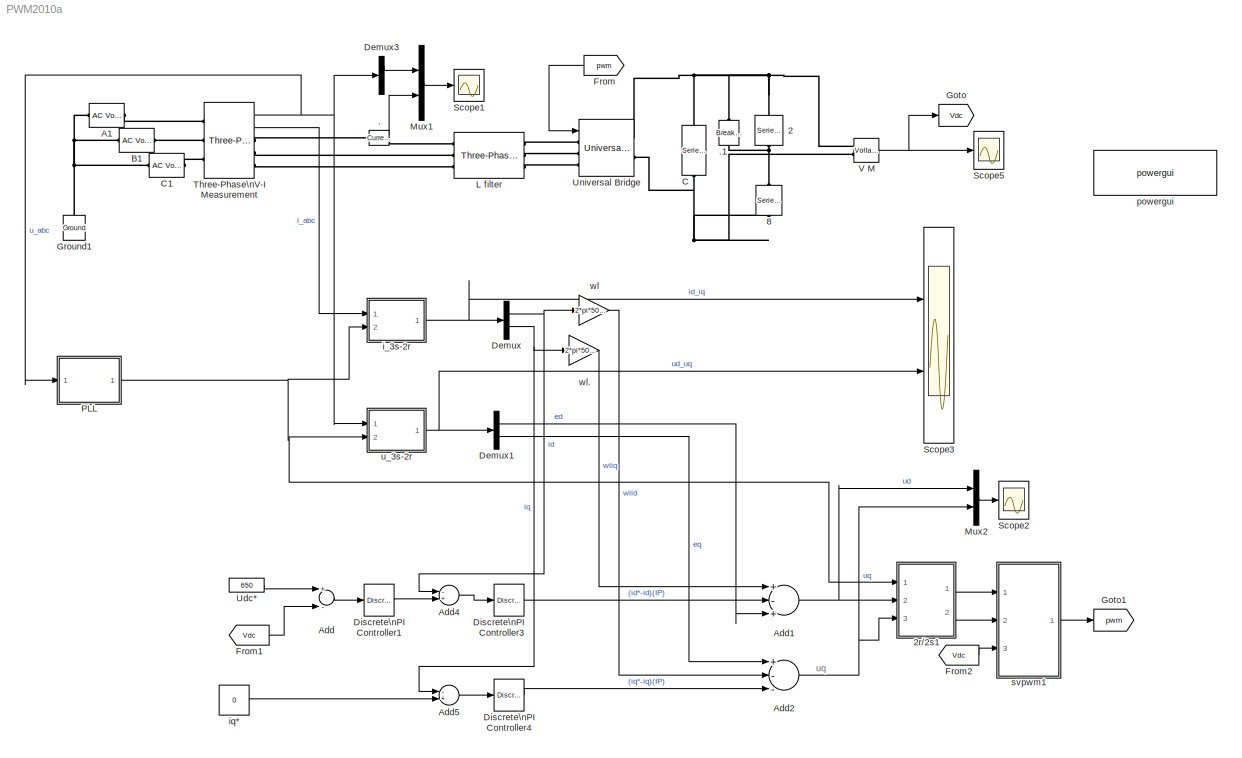
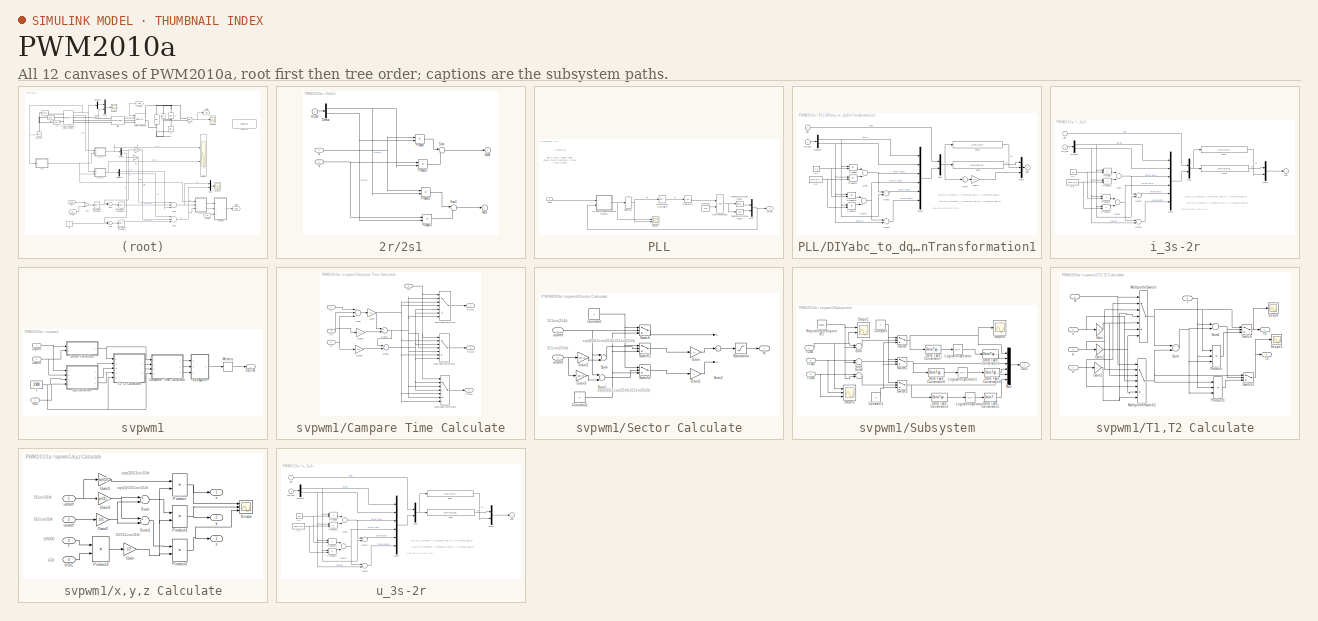
[diagram: thumbnail index - all 12 canvases of the model, root first then tree order]
MODEL PWM2010a
KIND model
BLOCK [Reference] .  REF=powerlib/Measurements/Current Measurement
  OutputType = Complex
  PSBequivalent = 0
  PhasorSimulation = off
  Ports = [0, 1, 0, 0, 0, 1, 1]
  SID = 1
  SourceBlock = powerlib/Measurements/Current Measurement
  SourceType = Current Measurement
BLOCK [Reference] .1  REF=powerlib/Elements/Breaker
  AttributesFormatString = \\n
  BreakerResistance = 0.001
  External = off
  InitialState = 0
  Measurements = None
  MoreParameters = off
  NoBreakLoop = off
  Ports = [0, 0, 0, 0, 0, 1, 1]
  SID = 3
  SnubberCapacitance = inf
  SnubberResistance = 1e6
  SourceBlock = powerlib/Elements/Breaker
  SourceType = Breaker
  SwitchingTimes = [0.8]
BLOCK [Reference] 2  REF=powerlib/Elements/Series RLC Branch
  BranchType = R
  Capacitance = 1e-3
  Inductance = 1e-3
  InitialCurrent = 0
  InitialVoltage = 0
  LConnTagsString = __new0
  Measurements = None
  Ports = [0, 0, 0, 0, 0, 1, 1]
  RConnTagsString = __new0
  Resistance = 2
  SID = 6
  SetiL0 = off
  Setx0 = off
  SourceBlock = powerlib/Elements/Series RLC Branch
  SourceType = Series RLC Branch
BLOCK [SubSystem] 2r//2s1
  FunctionWithSeparateData = off
  MaskHideContents = off
  MinAlgLoopOccurrences = off
  Opaque = off
  Ports = [3, 2]
  PropExecContextOutsideSubsystem = off
  RTWSystemCode = Auto
  RequestExecContextInheritance = off
  SID = 7
BLOCK [Demux] 2r//2s1/Demux
  DisplayOption = bar
  Outputs = 2
  Ports = [1, 2]
  SID = 11
BLOCK [Product] 2r//2s1/Product
  InputSameDT = off
  OutDataTypeMode = Inherit via internal rule
  OutDataTypeStr = Inherit: Inherit via internal rule
  Ports = [2, 1]
  SID = 12
  SaturateOnIntegerOverflow = off
BLOCK [Product] 2r//2s1/Product1
  InputSameDT = off
  OutDataTypeMode = Inherit via internal rule
  OutDataTypeStr = Inherit: Inherit via internal rule
  Ports = [2, 1]
  SID = 13
  SaturateOnIntegerOverflow = off
BLOCK [Product] 2r//2s1/Product2
  InputSameDT = off
  OutDataTypeMode = Inherit via internal rule
  OutDataTypeStr = Inherit: Inherit via internal rule
  Ports = [2, 1]
  SID = 14
  SaturateOnIntegerOverflow = off
BLOCK [Product] 2r//2s1/Product3
  InputSameDT = off
  OutDataTypeMode = Inherit via internal rule
  OutDataTypeStr = Inherit: Inherit via internal rule
  Ports = [2, 1]
  SID = 15
  SaturateOnIntegerOverflow = off
BLOCK [Sum] 2r//2s1/Sum
  IconShape = round
  InputSameDT = off
  Inputs = |+-
  OutDataTypeMode = Inherit via internal rule
  OutDataTypeStr = Inherit: Inherit via internal rule
  Ports = [2, 1]
  SID = 16
  SaturateOnIntegerOverflow = off
BLOCK [Sum] 2r//2s1/Sum1
  IconShape = round
  InputSameDT = off
  Inputs = |++
  OutDataTypeMode = Inherit via internal rule
  OutDataTypeStr = Inherit: Inherit via internal rule
  Ports = [2, 1]
  SID = 17
  SaturateOnIntegerOverflow = off
BLOCK [Outport] 2r//2s1/alpha
  IconDisplay = Port number
  InitialOutput = 0
  Port = 2
  SID = 19
BLOCK [Outport] 2r//2s1/beta
  IconDisplay = Port number
  InitialOutput = 0
  SID = 18
BLOCK [Inport] 2r//2s1/d
  IconDisplay = Port number
  Port = 2
  SID = 9
BLOCK [Inport] 2r//2s1/q
  IconDisplay = Port number
  Port = 3
  SID = 10
BLOCK [Inport] 2r//2s1/sin_cos
  IconDisplay = Port number
  PortDimensions = 2
  SID = 8
BLOCK [Reference] 8  REF=powerlib/Elements/Series RLC Branch
  BranchType = R
  Capacitance = 1e-3
  Inductance = 1e-3
  InitialCurrent = 0
  InitialVoltage = 0
  LConnTagsString = __new0
  Measurements = None
  Ports = [0, 0, 0, 0, 0, 1, 1]
  RConnTagsString = __new0
  Resistance = 8
  SID = 20
  SetiL0 = off
  Setx0 = off
  SourceBlock = powerlib/Elements/Series RLC Branch
  SourceType = Series RLC Branch
BLOCK [Reference] A1  REF=powerlib/Electrical\nSources/AC Voltage Source
  Amplitude = 311
  BusType = swing
  Frequency = 50
  Measurements = None
  Phase = 90
  Ports = [0, 0, 0, 0, 0, 1, 1]
  Pref = 10e3
  Qmax = +inf
  Qmin = -inf
  Qref = 0
  SID = 21
  SampleTime = 0
  SourceBlock = powerlib/Electrical\nSources/AC Voltage Source
  SourceType = AC Voltage Source
BLOCK [Sum] Add
  InputSameDT = off
  Inputs = +-
  OutDataTypeMode = Inherit via internal rule
  OutDataTypeStr = Inherit: Inherit via internal rule
  Ports = [2, 1]
  SID = 22
  SaturateOnIntegerOverflow = off
BLOCK [Sum] Add1
  InputSameDT = off
  Inputs = +-+
  OutDataTypeMode = Inherit via internal rule
  OutDataTypeStr = Inherit: Inherit via internal rule
  Ports = [3, 1]
  SID = 23
  SaturateOnIntegerOverflow = off
BLOCK [Sum] Add2
  InputSameDT = off
  Inputs = +--
  OutDataTypeMode = Inherit via internal rule
  OutDataTypeStr = Inherit: Inherit via internal rule
  Ports = [3, 1]
  SID = 24
  SaturateOnIntegerOverflow = off
BLOCK [Sum] Add4
  InputSameDT = off
  Inputs = -+
  OutDataTypeMode = Inherit via internal rule
  OutDataTypeStr = Inherit: Inherit via internal rule
  Ports = [2, 1]
  SID = 26
  SaturateOnIntegerOverflow = off
BLOCK [Sum] Add5
  InputSameDT = off
  Inputs = -+
  OutDataTypeMode = Inherit via internal rule
  OutDataTypeStr = Inherit: Inherit via internal rule
  Ports = [2, 1]
  SID = 27
  SaturateOnIntegerOverflow = off
BLOCK [Reference] B1  REF=powerlib/Electrical\nSources/AC Voltage Source
  Amplitude = 311
  BusType = swing
  Frequency = 50
  Measurements = None
  Phase = -120+90
  Ports = [0, 0, 0, 0, 0, 1, 1]
  Pref = 10e3
  Qmax = +inf
  Qmin = -inf
  Qref = 0
  SID = 28
  SampleTime = 0
  SourceBlock = powerlib/Electrical\nSources/AC Voltage Source
  SourceType = AC Voltage Source
BLOCK [Reference] C   REF=powerlib/Elements/Series RLC Branch
  BranchType = C
  Capacitance = 0.008
  Inductance = 1e-3
  InitialCurrent = 0
  InitialVoltage = 600
  LConnTagsString = __new0
  Measurements = None
  Ports = [0, 0, 0, 0, 0, 1, 1]
  RConnTagsString = __new0
  Resistance = 1
  SID = 29
  SetiL0 = off
  Setx0 = off
  SourceBlock = powerlib/Elements/Series RLC Branch
  SourceType = Series RLC Branch
BLOCK [Reference] C1  REF=powerlib/Electrical\nSources/AC Voltage Source
  Amplitude = 311
  BusType = swing
  Frequency = 50
  Measurements = None
  Phase = -240+90
  Ports = [0, 0, 0, 0, 0, 1, 1]
  Pref = 10e3
  Qmax = +inf
  Qmin = -inf
  Qref = 0
  SID = 30
  SampleTime = 0
  SourceBlock = powerlib/Electrical\nSources/AC Voltage Source
  SourceType = AC Voltage Source
BLOCK [Demux] Demux
  DisplayOption = bar
  Outputs = 2
  Ports = [1, 2]
  SID = 32
BLOCK [Demux] Demux1
  DisplayOption = bar
  Outputs = 2
  Ports = [1, 2]
  SID = 33
BLOCK [Demux] Demux3
  DisplayOption = bar
  Outputs = 3
  Ports = [1, 3]
  SID = 34
BLOCK [Reference] Discrete\nPI Controller1  REF=powerlib_extras/Discrete \nControl Blocks/Discrete\nPI Controller
  Init = 0
  Ki = 13
  Kp = 0.5
  Par_Limits = [10000 -10000]
  Ports = [1, 1]
  SID = 35
  SourceBlock = powerlib_extras/Discrete \nControl Blocks/Discrete\nPI Controller
  SourceType = Discrete PI Controller
  Ts = 50e-6
BLOCK [Reference] Discrete\nPI Controller3  REF=powerlib_extras/Discrete \nControl Blocks/Discrete\nPI Controller
  Init = 0
  Ki = 120
  Kp = 20
  Par_Limits = [1e6 -1e6]
  Ports = [1, 1]
  SID = 36
  SourceBlock = powerlib_extras/Discrete \nControl Blocks/Discrete\nPI Controller
  SourceType = Discrete PI Controller
  Ts = 50e-6
BLOCK [Reference] Discrete\nPI Controller4  REF=powerlib_extras/Discrete \nControl Blocks/Discrete\nPI Controller
  Init = 0
  Ki = 100
  Kp = 20
  Par_Limits = [1e6 -1e6]
  Ports = [1, 1]
  SID = 37
  SourceBlock = powerlib_extras/Discrete \nControl Blocks/Discrete\nPI Controller
  SourceType = Discrete PI Controller
  Ts = 50e-6
BLOCK [From] From
  GotoTag = pwm
  SID = 203
  TagVisibility = global
BLOCK [From] From1
  GotoTag = Vdc
  SID = 204
  TagVisibility = global
BLOCK [From] From2
  GotoTag = Vdc
  SID = 205
  TagVisibility = global
BLOCK [Goto] Goto
  GotoTag = Vdc
  SID = 201
  TagVisibility = global
BLOCK [Goto] Goto1
  GotoTag = pwm
  SID = 202
  TagVisibility = global
BLOCK [Reference] Ground1  REF=powerlib/Elements/Ground
  LConnTagsString = a
  Ports = [0, 0, 0, 0, 0, 1]
  SID = 40
  SourceBlock = powerlib/Elements/Ground
  SourceType = Ground
BLOCK [Reference] L filter  REF=powerlib/Elements/Three-Phase\nSeries RLC Branch
  AttributesFormatString = \\n
  BranchType = RL
  Capacitance = 1e-6
  Inductance = 0.002
  LConnTagsString = A|B|C
  Measurements = None
  Ports = [0, 0, 0, 0, 0, 3, 3]
  RConnTagsString = A|B|C
  Resistance = 0.5
  SID = 64
  SourceBlock = powerlib/Elements/Three-Phase\nSeries RLC Branch
  SourceType = Three-Phase Series RLC Branch
BLOCK [Mux] Mux1
  DisplayOption = bar
  Inputs = 2
  Ports = [2, 1]
  SID = 42
BLOCK [Mux] Mux2
  DisplayOption = bar
  Inputs = 2
  Ports = [2, 1]
  SID = 43
BLOCK [SubSystem] PLL
  FunctionWithSeparateData = off
  MaskHideContents = off
  MinAlgLoopOccurrences = off
  Opaque = off
  Ports = [1, 1]
  PropExecContextOutsideSubsystem = off
  RTWSystemCode = Auto
  RequestExecContextInheritance = off
  SID = 45
BLOCK [Constant] PLL/Constant3
  SID = 47
  Value = 2*pi
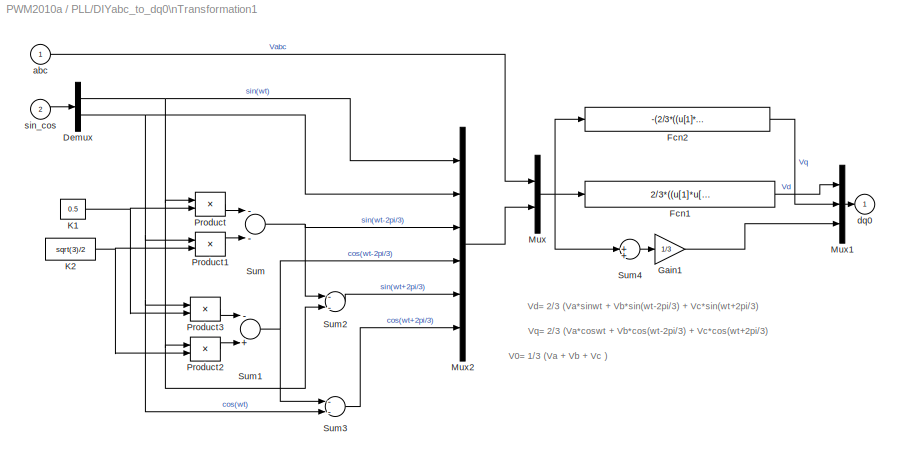
BLOCK [SubSystem] PLL/DIYabc_to_dq0\nTransformation1
  AncestorBlock = powerlib_extras/Measurements/abc_to_dq0\nTransformation
  FunctionWithSeparateData = off
  MaskDescription = This block performs the  abc to dq0 transformation on a set of three-phase signals. It computes the direct axis Vd, quadratic axis Vq, and zero sequence V0 quantities in a two axis rotating reference frame according to the following transformation:\n\n\nVd = 2/3*[Va*cos(wt) + Vb*cos(wt-2pi/3) + Vc*cos(wt+2pi/3)]\nVq = 2/3*[-Va*sin(wt) - Vb*sin(wt-2pi/3) - Vc*sin(wt+2pi/3)] \nV0 = 1/3*[Va +  Vb  + ...<+189ch>  <repeated x3 — deduplicated; at blocks: DIYabc_to_dq0\nTransformation1, i_3s-2r, u_3s-2r>
  MaskHelp = web(psbhelp);
  MaskHideContents = off
  MaskIconFrame = on
  MaskIconOpaque = on
  MaskIconRotate = none
  MaskIconUnits = autoscale
  MaskPortRotate = default
  MaskType = abc to dq0 Transformation
  MinAlgLoopOccurrences = off
  Opaque = off
  Ports = [2, 1]
  PropExecContextOutsideSubsystem = off
  RTWSystemCode = Auto
  RequestExecContextInheritance = off
  SID = 48
BLOCK [Demux] PLL/DIYabc_to_dq0\nTransformation1/Demux
  DisplayOption = bar
  Outputs = 2
  Ports = [1, 2]
  SID = 3
BLOCK [Fcn] PLL/DIYabc_to_dq0\nTransformation1/Fcn1
  Expr = 2/3*((u[1]*u[5])+(u[2]*u[7])+(u[3]*u[9]))
  SID = 4
BLOCK [Fcn] PLL/DIYabc_to_dq0\nTransformation1/Fcn2
  Expr = -(2/3*((u[1]*u[4])+(u[2]*u[6])+(u[3]*u[8])))
  SID = 5
BLOCK [Gain] PLL/DIYabc_to_dq0\nTransformation1/Gain1
  Gain = 1/3
  SID = 6
BLOCK [Constant] PLL/DIYabc_to_dq0\nTransformation1/K1
  SID = 7
  Value = 0.5
BLOCK [Constant] PLL/DIYabc_to_dq0\nTransformation1/K2
  SID = 8
  Value = sqrt(3)/2
BLOCK [Mux] PLL/DIYabc_to_dq0\nTransformation1/Mux
  DisplayOption = bar
  Inputs = 2
  Ports = [2, 1]
  SID = 9
BLOCK [Mux] PLL/DIYabc_to_dq0\nTransformation1/Mux1
  DisplayOption = bar
  Inputs = 3
  Ports = [3, 1]
  SID = 10
BLOCK [Mux] PLL/DIYabc_to_dq0\nTransformation1/Mux2
  DisplayOption = bar
  Inputs = 6
  Ports = [6, 1]
  SID = 11
BLOCK [Product] PLL/DIYabc_to_dq0\nTransformation1/Product
  Ports = [2, 1]
  RndMeth = Floor
  SID = 12
BLOCK [Product] PLL/DIYabc_to_dq0\nTransformation1/Product1
  Ports = [2, 1]
  RndMeth = Floor
  SID = 13
BLOCK [Product] PLL/DIYabc_to_dq0\nTransformation1/Product2
  Ports = [2, 1]
  RndMeth = Floor
  SID = 14
BLOCK [Product] PLL/DIYabc_to_dq0\nTransformation1/Product3
  Ports = [2, 1]
  RndMeth = Floor
  SID = 15
BLOCK [Sum] PLL/DIYabc_to_dq0\nTransformation1/Sum
  Inputs = --
  Ports = [2, 1]
  SID = 16
BLOCK [Sum] PLL/DIYabc_to_dq0\nTransformation1/Sum1
  Inputs = -+
  Ports = [2, 1]
  SID = 17
BLOCK [Sum] PLL/DIYabc_to_dq0\nTransformation1/Sum2
  Inputs = --
  Ports = [2, 1]
  SID = 18
BLOCK [Sum] PLL/DIYabc_to_dq0\nTransformation1/Sum3
  Inputs = --
  Ports = [2, 1]
  SID = 19
BLOCK [Sum] PLL/DIYabc_to_dq0\nTransformation1/Sum4
  Inputs = 1
  Ports = [1, 1]
  SID = 20
BLOCK [Inport] PLL/DIYabc_to_dq0\nTransformation1/abc
  IconDisplay = Port number
  PortDimensions = 3
  SID = 1
BLOCK [Outport] PLL/DIYabc_to_dq0\nTransformation1/dq0
  IconDisplay = Port number
  InitialOutput = 0
  SID = 21
BLOCK [Inport] PLL/DIYabc_to_dq0\nTransformation1/sin_cos
  IconDisplay = Port number
  Port = 2
  PortDimensions = 2
  SID = 2
BLOCK [Reference] PLL/Discrete\nPI Controller3  REF=powerlib_extras/Discrete \nControl Blocks/Discrete\nPI Controller
  Init = 0
  Ki = 120
  Kp = 20
  Par_Limits = [1e6 -1e6]
  Ports = [1, 1]
  SID = 198
  SourceBlock = powerlib_extras/Discrete \nControl Blocks/Discrete\nPI Controller
  SourceType = Discrete PI Controller
  Ts = 50e-6
BLOCK [Integrator] PLL/Integrator2
  Ports = [1, 1]
  SID = 50
BLOCK [Math] PLL/Math\nFunction1
  Operator = mod
  Ports = [2, 1]
  SID = 51
BLOCK [Mux] PLL/Mux1
  DisplayOption = bar
  Inputs = 2
  Ports = [2, 1]
  SID = 52
BLOCK [Scope] PLL/Scope3
  DataFormat = StructureWithTime
  Decimation = 1
  Grid = on
  LimitDataPoints = off
  MaxDataPoints = 5000
  NumInputPorts = 2
  Ports = [2]
  SID = 53
  SampleInput = off
  SampleTime = -1
  SaveName = ScopeData12
  SaveToWorkspace = off
  TickLabels = OneTimeTick
  TimeRange = auto
  YMax = 350.48538~18.20012
  YMin = -44.36843~-7.44785
  ZoomMode = on
BLOCK [Selector] PLL/Selector1
  IndexOptions = Index vector (dialog)
  Indices = 2
  InputPortWidth = 3
  OutputSizes = 1
  Ports = [1, 1]
  SID = 54
BLOCK [Trigonometry] PLL/Trigonometric\nFunction1
  Ports = [1, 1]
  SID = 55
BLOCK [Trigonometry] PLL/Trigonometric\nFunction3
  Operator = cos
  Ports = [1, 1]
  SID = 56
BLOCK [Inport] PLL/Vabc
  IconDisplay = Port number
  PortDimensions = 3
  SID = 46
BLOCK [Outport] PLL/sin_cos
  IconDisplay = Port number
  SID = 58
BLOCK [Scope] Scope1
  DataFormat = StructureWithTime
  Decimation = 1
  Grid = on
  LimitDataPoints = off
  MaxDataPoints = 5000
  Ports = [1]
  SID = 59
  SampleInput = off
  SampleTime = -1
  SaveName = ScopeData
  SaveToWorkspace = off
  TickLabels = OneTimeTick
  TimeRange = auto
  YMax = 406.4876
  YMin = -479.93424
  ZoomMode = on
BLOCK [Scope] Scope2
  DataFormat = StructureWithTime
  Decimation = 1
  Grid = on
  LimitDataPoints = off
  MaxDataPoints = 5000
  Ports = [1]
  SID = 60
  SampleInput = off
  SampleTime = -1
  SaveName = ScopeData2
  SaveToWorkspace = off
  TickLabels = OneTimeTick
  TimeRange = auto
  YMax = 2298.48553
  YMin = -7003.21346
  ZoomMode = on
BLOCK [Scope] Scope3
  DataFormat = StructureWithTime
  Decimation = 1
  Grid = on
  LimitDataPoints = off
  MaxDataPoints = 5000
  NumInputPorts = 2
  Ports = [2]
  SID = 61
  SampleInput = off
  SampleTime = -1
  SaveName = ScopeData3
  SaveToWorkspace = off
  TickLabels = OneTimeTick
  TimeRange = auto
  YMax = 420.48098~350.48538
  YMin = -344.98603~-44.36843
  ZoomMode = on
BLOCK [Scope] Scope5
  DataFormat = StructureWithTime
  Decimation = 1
  Grid = on
  LimitDataPoints = off
  MaxDataPoints = 5000
  Ports = [1]
  SID = 63
  SampleInput = off
  SampleTime = -1
  SaveName = ScopeData5
  SaveToWorkspace = on
  TickLabels = OneTimeTick
  TimeRange = auto
  YMax = 790.31086
  YMin = 461.71177
  ZoomMode = on
BLOCK [Reference] Three-Phase\nV-I Measurement  REF=powerlib/Measurements/Three-Phase\nV-I Measurement
  CurrentMeasurement = yes
  Ipu = off
  LabelI = Iabc
  LabelV = Vabc
  OutputType = Complex
  PSBequivalent = 0
  Pbase = 100e6
  PhasorSimulation = off
  Ports = [0, 2, 0, 0, 0, 3, 3]
  SID = 65
  SetLabelI = off
  SetLabelV = off
  SourceBlock = powerlib/Measurements/Three-Phase\nV-I Measurement
  SourceType = Three-Phase VI Measurement
  Vbase = 500e3
  VoltageMeasurement = phase-to-ground
  Vpu = off
  VpuLL = off
BLOCK [Constant] Udc*
  SID = 66
  Value = 650
BLOCK [Reference] Universal Bridge  REF=powerlib/Power\nElectronics/Universal Bridge
  Arms = 3
  Device = IGBT / Diodes
  ForwardVoltage = 0
  ForwardVoltages = [  0  0  ]
  GTOparameters = [ 10e-6 , 20e-6 ]
  IGBTparameters = [ 1e-6 , 2e-6 ]
  Lon = 0
  Measurements = None
  Measurements_2 = None
  Ports = [1, 0, 0, 0, 0, 3, 2]
  Ron = 1e-3
  SID = 67
  SnubberCapacitance = inf
  SnubberResistance = 1e5
  SourceBlock = powerlib/Power\nElectronics/Universal Bridge
  SourceType = Universal Bridge
  converterType = Rectifier
BLOCK [Reference] V M  REF=powerlib/Measurements/Voltage Measurement
  OutputType = Complex
  PSBequivalent = 0
  PhasorSimulation = off
  Ports = [0, 1, 0, 0, 0, 2]
  SID = 68
  SourceBlock = powerlib/Measurements/Voltage Measurement
  SourceType = Voltage Measurement
BLOCK [SubSystem] i_3s-2r
  AncestorBlock = powerlib_extras/Measurements/abc_to_dq0\nTransformation
  FunctionWithSeparateData = off
  MaskHelp = web(psbhelp);
  MaskHideContents = off
  MaskIconFrame = on
  MaskIconOpaque = on
  MaskIconRotate = none
  MaskIconUnits = autoscale
  MaskPortRotate = default
  MaskType = abc to dq0 Transformation
  MinAlgLoopOccurrences = off
  Opaque = off
  Ports = [2, 1]
  PropExecContextOutsideSubsystem = off
  RTWSystemCode = Auto
  RequestExecContextInheritance = off
  SID = 71
BLOCK [Demux] i_3s-2r/Demux
  DisplayOption = bar
  Outputs = 2
  Ports = [1, 2]
  SID = 3
BLOCK [Fcn] i_3s-2r/Fcn1
  Expr = 2/3*((u[1]*u[5])+(u[2]*u[7])+(u[3]*u[9]))
  SID = 4
BLOCK [Fcn] i_3s-2r/Fcn2
  Expr = -(2/3*((u[1]*u[4])+(u[2]*u[6])+(u[3]*u[8])))
  SID = 5
BLOCK [Constant] i_3s-2r/K1
  SID = 7
  Value = 0.5
BLOCK [Constant] i_3s-2r/K2
  SID = 8
  Value = sqrt(3)/2
BLOCK [Mux] i_3s-2r/Mux
  DisplayOption = bar
  Inputs = 2
  Ports = [2, 1]
  SID = 9
BLOCK [Mux] i_3s-2r/Mux1
  DisplayOption = bar
  Inputs = 2
  Ports = [2, 1]
  SID = 10
BLOCK [Mux] i_3s-2r/Mux2
  DisplayOption = bar
  Inputs = 6
  Ports = [6, 1]
  SID = 11
BLOCK [Product] i_3s-2r/Product
  Ports = [2, 1]
  RndMeth = Floor
  SID = 12
BLOCK [Product] i_3s-2r/Product1
  Ports = [2, 1]
  RndMeth = Floor
  SID = 13
BLOCK [Product] i_3s-2r/Product2
  Ports = [2, 1]
  RndMeth = Floor
  SID = 14
BLOCK [Product] i_3s-2r/Product3
  Ports = [2, 1]
  RndMeth = Floor
  SID = 15
BLOCK [Sum] i_3s-2r/Sum
  Inputs = --
  Ports = [2, 1]
  SID = 16
BLOCK [Sum] i_3s-2r/Sum1
  Inputs = -+
  Ports = [2, 1]
  SID = 17
BLOCK [Sum] i_3s-2r/Sum2
  Inputs = --
  Ports = [2, 1]
  SID = 18
BLOCK [Sum] i_3s-2r/Sum3
  Inputs = --
  Ports = [2, 1]
  SID = 19
BLOCK [Inport] i_3s-2r/abc
  IconDisplay = Port number
  PortDimensions = 3
  SID = 1
BLOCK [Outport] i_3s-2r/dq0
  IconDisplay = Port number
  InitialOutput = 0
  SID = 21
BLOCK [Inport] i_3s-2r/sin_cos
  IconDisplay = Port number
  Port = 2
  PortDimensions = 2
  SID = 2
BLOCK [Constant] iq*
  SID = 72
  Value = 0
BLOCK [Reference] powergui  REF=powerlib/powergui
  DisableRonSwitches = off
  DisableSnubberDevices = off
  DisableVfSwitches = off
  DisplayEquations = off
  DisplayStyle = 1
  EnableUseOfTLC = off
  ErrMax = 1e-4
  ExternalGateDelay = off
  Frange = [0:2:500]
  FreqAxis = on
  FunctionMessages = off
  HookPort = off
  Interpol = off
  Iterations = 50
  MaxFrequency = 1000
  Pbase = 100e6
  Ports = []
  ResistiveCurrentMeasurement = off
  RestoreLinks = warning
  RmsSteady = 1
  SID = 73
  SPID = off
  SampleTime = 50e-6
  ShowGrid = off
  SolverType = Tustin/Backward Euler (TBE)
  SourceBlock = powerlib/powergui
  SourceType = PSB option menu block
  StartTime = 0.4
  SwTol = 0
  Ts = 0
  UnitsV = kV
  UnitsW = MW
  UserData = DataTag0
  UserDataPersistent = on
  Xlog = on
  Ylog = off
  ZoomFFT = on
  buscounter = 0
  cycles = 2
  display = off
  echomessages = off
  frequency = 60
  frequencyindice = 0
  frequencyindicesteady = 1
  fundamental = 50
  methode = off
  save = off
  structure = ScopeData7
  variable = ZData
  x0status = blocks
BLOCK [SubSystem] svpwm1
  FunctionWithSeparateData = off
  MaskHideContents = off
  MinAlgLoopOccurrences = off
  Opaque = off
  Ports = [3, 1]
  PropExecContextOutsideSubsystem = off
  RTWSystemCode = Auto
  RequestExecContextInheritance = off
  SID = 82
BLOCK [Outport] svpwm1/6pulse
  IconDisplay = Port number
  SID = 189
BLOCK [SubSystem] svpwm1/Campare Time Calculate
  FunctionWithSeparateData = off
  MaskHideContents = off
  MinAlgLoopOccurrences = off
  Opaque = off
  Ports = [4, 3]
  PropExecContextOutsideSubsystem = off
  RTWSystemCode = Auto
  RequestExecContextInheritance = off
  SID = 87
BLOCK [Gain] svpwm1/Campare Time Calculate/Gain
  Gain = 1/4
  SID = 92
BLOCK [Gain] svpwm1/Campare Time Calculate/Gain1
  Gain = 1/2
  SID = 93
BLOCK [Gain] svpwm1/Campare Time Calculate/Gain2
  Gain = 1/2
  SID = 94
BLOCK [MultiPortSwitch] svpwm1/Campare Time Calculate/Multiport\nSwitch
  InputSameDT = off
  Inputs = 6
  Ports = [7, 1]
  SID = 95
BLOCK [MultiPortSwitch] svpwm1/Campare Time Calculate/Multiport\nSwitch1
  InputSameDT = off
  Inputs = 6
  Ports = [7, 1]
  SID = 96
BLOCK [MultiPortSwitch] svpwm1/Campare Time Calculate/Multiport\nSwitch2
  InputSameDT = off
  Inputs = 6
  Ports = [7, 1]
  SID = 97
BLOCK [Inport] svpwm1/Campare Time Calculate/N
  IconDisplay = Port number
  SID = 88
BLOCK [Sum] svpwm1/Campare Time Calculate/Sum
  InputSameDT = off
  Inputs = +--
  OutDataTypeMode = Inherit via internal rule
  OutDataTypeStr = Inherit: Inherit via internal rule
  Ports = [3, 1]
  SID = 98
BLOCK [Sum] svpwm1/Campare Time Calculate/Sum1
  InputSameDT = off
  OutDataTypeMode = Inherit via internal rule
  OutDataTypeStr = Inherit: Inherit via internal rule
  Ports = [2, 1]
  SID = 99
BLOCK [Sum] svpwm1/Campare Time Calculate/Sum2
  InputSameDT = off
  OutDataTypeMode = Inherit via internal rule
  OutDataTypeStr = Inherit: Inherit via internal rule
  Ports = [2, 1]
  SID = 100
BLOCK [Inport] svpwm1/Campare Time Calculate/T
  IconDisplay = Port number
  Port = 4
  SID = 91
BLOCK [Inport] svpwm1/Campare Time Calculate/T1
  IconDisplay = Port number
  Port = 2
  SID = 89
BLOCK [Inport] svpwm1/Campare Time Calculate/T2
  IconDisplay = Port number
  Port = 3
  SID = 90
BLOCK [Outport] svpwm1/Campare Time Calculate/TCM1
  IconDisplay = Port number
  SID = 101
BLOCK [Outport] svpwm1/Campare Time Calculate/TCM2
  IconDisplay = Port number
  Port = 2
  SID = 102
BLOCK [Outport] svpwm1/Campare Time Calculate/TCM3
  IconDisplay = Port number
  Port = 3
  SID = 103
BLOCK [Memory] svpwm1/Memory
  SID = 199
BLOCK [SubSystem] svpwm1/Sector Calculate
  FunctionWithSeparateData = off
  MaskHideContents = off
  MinAlgLoopOccurrences = off
  Opaque = off
  Ports = [2, 1]
  PropExecContextOutsideSubsystem = off
  RTWSystemCode = Auto
  RequestExecContextInheritance = off
  SID = 104
BLOCK [Constant] svpwm1/Sector Calculate/Constant
  SID = 107
BLOCK [Constant] svpwm1/Sector Calculate/Constant1
  SID = 108
  Value = 0
BLOCK [Gain] svpwm1/Sector Calculate/Gain
  Gain = 2
  SID = 109
BLOCK [Gain] svpwm1/Sector Calculate/Gain1
  Gain = 4
  SID = 110
BLOCK [Gain] svpwm1/Sector Calculate/Gain2
  Gain = sqrt(3)
  SID = 111
BLOCK [Gain] svpwm1/Sector Calculate/Gain3
  Gain = -sqrt(3)
  SID = 112
BLOCK [Outport] svpwm1/Sector Calculate/N
  IconDisplay = Port number
  SID = 121
BLOCK [Saturate] svpwm1/Sector Calculate/Saturation
  LowerLimit = 1
  SID = 113
  UpperLimit = 6
BLOCK [Sum] svpwm1/Sector Calculate/Sum
  InputSameDT = off
  Inputs = -+
  OutDataTypeMode = Inherit via internal rule
  OutDataTypeStr = Inherit: Inherit via internal rule
  Ports = [2, 1]
  SID = 115
BLOCK [Sum] svpwm1/Sector Calculate/Sum1
  InputSameDT = off
  Inputs = -+
  OutDataTypeMode = Inherit via internal rule
  OutDataTypeStr = Inherit: Inherit via internal rule
  Ports = [2, 1]
  SID = 116
BLOCK [Sum] svpwm1/Sector Calculate/Sum2
  InputSameDT = off
  Inputs = +++
  OutDataTypeMode = Inherit via internal rule
  OutDataTypeStr = Inherit: Inherit via internal rule
  Ports = [3, 1]
  SID = 117
BLOCK [Switch] svpwm1/Sector Calculate/Switch
  InputSameDT = off
  SID = 118
BLOCK [Switch] svpwm1/Sector Calculate/Switch1
  InputSameDT = off
  SID = 119
BLOCK [Switch] svpwm1/Sector Calculate/Switch2
  InputSameDT = off
  SID = 120
BLOCK [Inport] svpwm1/Sector Calculate/usaref
  IconDisplay = Port number
  Port = 2
  SID = 106
BLOCK [Inport] svpwm1/Sector Calculate/usbref
  IconDisplay = Port number
  SID = 105
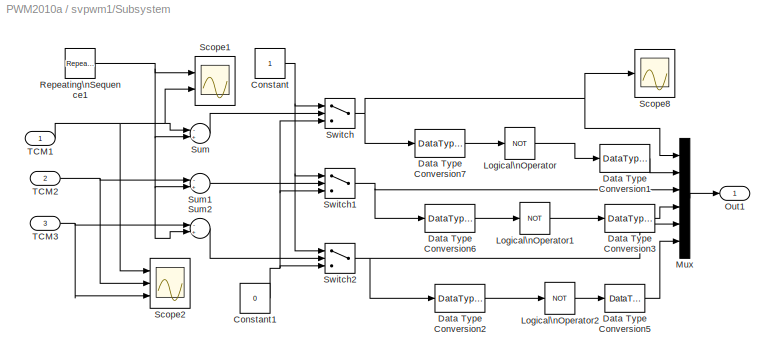
BLOCK [SubSystem] svpwm1/Subsystem
  FunctionWithSeparateData = off
  MaskHideContents = off
  MinAlgLoopOccurrences = off
  Opaque = off
  Ports = [3, 1]
  PropExecContextOutsideSubsystem = off
  RTWSystemCode = Auto
  RequestExecContextInheritance = off
  SID = 122
BLOCK [Constant] svpwm1/Subsystem/Constant
  SID = 126
BLOCK [Constant] svpwm1/Subsystem/Constant1
  SID = 127
  Value = 0
BLOCK [DataTypeConversion] svpwm1/Subsystem/Data Type Conversion1
  OutDataTypeMode = double
  OutDataTypeStr = double
  SID = 128
BLOCK [DataTypeConversion] svpwm1/Subsystem/Data Type Conversion2
  OutDataTypeMode = boolean
  OutDataTypeStr = boolean
  SID = 129
BLOCK [DataTypeConversion] svpwm1/Subsystem/Data Type Conversion3
  OutDataTypeMode = double
  OutDataTypeStr = double
  SID = 130
BLOCK [DataTypeConversion] svpwm1/Subsystem/Data Type Conversion5
  OutDataTypeMode = double
  OutDataTypeStr = double
  SID = 131
BLOCK [DataTypeConversion] svpwm1/Subsystem/Data Type Conversion6
  OutDataTypeMode = boolean
  OutDataTypeStr = boolean
  SID = 132
BLOCK [DataTypeConversion] svpwm1/Subsystem/Data Type Conversion7
  OutDataTypeMode = boolean
  OutDataTypeStr = boolean
  SID = 133
BLOCK [Logic] svpwm1/Subsystem/Logical\nOperator
  AllPortsSameDT = off
  Operator = NOT
  Ports = [1, 1]
  SID = 134
BLOCK [Logic] svpwm1/Subsystem/Logical\nOperator1
  AllPortsSameDT = off
  Operator = NOT
  Ports = [1, 1]
  SID = 135
BLOCK [Logic] svpwm1/Subsystem/Logical\nOperator2
  AllPortsSameDT = off
  Operator = NOT
  Ports = [1, 1]
  SID = 136
BLOCK [Mux] svpwm1/Subsystem/Mux
  DisplayOption = bar
  Inputs = 6
  Ports = [6, 1]
  SID = 137
BLOCK [Outport] svpwm1/Subsystem/Out1
  IconDisplay = Port number
  SID = 148
BLOCK [Reference] svpwm1/Subsystem/Repeating\nSequence1  REF=simulink/Sources/Repeating\nSequence
  Ports = [0, 1]
  SID = 138
  SourceBlock = simulink/Sources/Repeating\nSequence
  SourceType = Repeating table
  rep_seq_t = [0 1/10000 1/5000]
  rep_seq_y = [0 1/10000 0]
BLOCK [Scope] svpwm1/Subsystem/Scope1
  DataFormat = StructureWithTime
  Decimation = 1
  Grid = on
  LimitDataPoints = off
  MaxDataPoints = 5000
  NumInputPorts = 2
  Ports = [2]
  SID = 139
  SampleInput = off
  SampleTime = -1
  SaveName = ScopeData15
  SaveToWorkspace = off
  TickLabels = OneTimeTick
  TimeRange = 0.028
  YMax = 8.5e-005~2.64e-005
  YMin = 0~2.45e-005
  ZoomMode = xonly
BLOCK [Scope] svpwm1/Subsystem/Scope2
  DataFormat = StructureWithTime
  Decimation = 1
  Grid = on
  LimitDataPoints = off
  MaxDataPoints = 5000
  NumInputPorts = 3
  Ports = [3]
  SID = 140
  SampleInput = off
  SampleTime = -1
  SaveName = ScopeData19
  SaveToWorkspace = off
  TickLabels = OneTimeTick
  TimeRange = 0.07000000000000001
  YMax = 6e-005~6e-005~6e-005
  YMin = 2.25e-005~2.25e-005~2.25e-005
  ZoomMode = xonly
BLOCK [Scope] svpwm1/Subsystem/Scope8
  DataFormat = StructureWithTime
  Decimation = 1
  Grid = on
  LimitDataPoints = off
  MaxDataPoints = 5000
  Ports = [1]
  SID = 141
  SampleInput = off
  SampleTime = -1
  SaveName = ScopeData13
  SaveToWorkspace = off
  TickLabels = OneTimeTick
  TimeRange = 0.07000000000000001
  YMax = 2
  YMin = 0
  ZoomMode = xonly
BLOCK [Sum] svpwm1/Subsystem/Sum
  InputSameDT = off
  Inputs = -+
  OutDataTypeMode = Inherit via internal rule
  OutDataTypeStr = Inherit: Inherit via internal rule
  Ports = [2, 1]
  SID = 142
BLOCK [Sum] svpwm1/Subsystem/Sum1
  InputSameDT = off
  Inputs = -+
  OutDataTypeMode = Inherit via internal rule
  OutDataTypeStr = Inherit: Inherit via internal rule
  Ports = [2, 1]
  SID = 143
BLOCK [Sum] svpwm1/Subsystem/Sum2
  InputSameDT = off
  Inputs = -+
  OutDataTypeMode = Inherit via internal rule
  OutDataTypeStr = Inherit: Inherit via internal rule
  Ports = [2, 1]
  SID = 144
BLOCK [Switch] svpwm1/Subsystem/Switch
  InputSameDT = off
  SID = 145
BLOCK [Switch] svpwm1/Subsystem/Switch1
  InputSameDT = off
  SID = 146
BLOCK [Switch] svpwm1/Subsystem/Switch2
  InputSameDT = off
  SID = 147
BLOCK [Inport] svpwm1/Subsystem/TCM1
  IconDisplay = Port number
  SID = 123
BLOCK [Inport] svpwm1/Subsystem/TCM2
  IconDisplay = Port number
  Port = 2
  SID = 124
BLOCK [Inport] svpwm1/Subsystem/TCM3
  IconDisplay = Port number
  Port = 3
  SID = 125
BLOCK [Constant] svpwm1/T
  SID = 200
  Value = 1/5000
BLOCK [SubSystem] svpwm1/T1,T2 Calculate
  FunctionWithSeparateData = off
  MaskHideContents = off
  MinAlgLoopOccurrences = off
  Opaque = off
  Ports = [5, 2]
  PropExecContextOutsideSubsystem = off
  RTWSystemCode = Auto
  RequestExecContextInheritance = off
  SID = 149
BLOCK [Gain] svpwm1/T1,T2 Calculate/Gain
  Gain = -1
  SID = 155
BLOCK [Gain] svpwm1/T1,T2 Calculate/Gain1
  Gain = -1
  SID = 156
BLOCK [Gain] svpwm1/T1,T2 Calculate/Gain2
  Gain = -1
  SID = 157
BLOCK [MultiPortSwitch] svpwm1/T1,T2 Calculate/Multiport\nSwitch
  InputSameDT = off
  Inputs = 6
  Ports = [7, 1]
  SID = 158
BLOCK [MultiPortSwitch] svpwm1/T1,T2 Calculate/Multiport\nSwitch1
  InputSameDT = off
  Inputs = 6
  Ports = [7, 1]
  SID = 159
BLOCK [Inport] svpwm1/T1,T2 Calculate/N
  IconDisplay = Port number
  SID = 150
BLOCK [Product] svpwm1/T1,T2 Calculate/Product
  InputSameDT = off
  Inputs = **/
  Ports = [3, 1]
  RndMeth = Floor
  SID = 160
BLOCK [Product] svpwm1/T1,T2 Calculate/Product1
  InputSameDT = off
  Inputs = **/
  Ports = [3, 1]
  RndMeth = Floor
  SID = 161
BLOCK [Scope] svpwm1/T1,T2 Calculate/Scope
  DataFormat = StructureWithTime
  Decimation = 1
  Grid = on
  LimitDataPoints = on
  MaxDataPoints = 5000
  Ports = [1]
  SID = 162
  SampleInput = off
  SampleTime = -1
  SaveName = ScopeData16
  SaveToWorkspace = off
  TickLabels = OneTimeTick
  TimeRange = auto
  YMax = 6.25e-005
  YMin = 3.5e-005
  ZoomMode = on
BLOCK [Scope] svpwm1/T1,T2 Calculate/Scope1
  DataFormat = StructureWithTime
  Decimation = 1
  Grid = on
  LimitDataPoints = on
  MaxDataPoints = 5000
  Ports = [1]
  SID = 163
  SampleInput = off
  SampleTime = -1
  SaveName = ScopeData17
  SaveToWorkspace = off
  TickLabels = OneTimeTick
  TimeRange = auto
  YMax = 2e-007
  YMin = 1.3e-007
  ZoomMode = on
BLOCK [Sum] svpwm1/T1,T2 Calculate/Sum
  InputSameDT = off
  OutDataTypeMode = Inherit via internal rule
  OutDataTypeStr = Inherit: Inherit via internal rule
  Ports = [2, 1]
  SID = 164
BLOCK [Sum] svpwm1/T1,T2 Calculate/Sum1
  InputSameDT = off
  Inputs = +-
  OutDataTypeMode = Inherit via internal rule
  OutDataTypeStr = Inherit: Inherit via internal rule
  Ports = [2, 1]
  SID = 165
BLOCK [Switch] svpwm1/T1,T2 Calculate/Switch
  InputSameDT = off
  SID = 166
BLOCK [Switch] svpwm1/T1,T2 Calculate/Switch1
  InputSameDT = off
  SID = 167
BLOCK [Inport] svpwm1/T1,T2 Calculate/T
  IconDisplay = Port number
  Port = 5
  SID = 154
BLOCK [Outport] svpwm1/T1,T2 Calculate/T1
  IconDisplay = Port number
  SID = 168
BLOCK [Outport] svpwm1/T1,T2 Calculate/T2
  IconDisplay = Port number
  Port = 2
  SID = 169
BLOCK [Inport] svpwm1/T1,T2 Calculate/x
  IconDisplay = Port number
  Port = 2
  SID = 151
BLOCK [Inport] svpwm1/T1,T2 Calculate/y
  IconDisplay = Port number
  Port = 3
  SID = 152
BLOCK [Inport] svpwm1/T1,T2 Calculate/z
  IconDisplay = Port number
  Port = 4
  SID = 153
BLOCK [Inport] svpwm1/VDC
  IconDisplay = Port number
  Port = 3
  SID = 86
BLOCK [Inport] svpwm1/usaref
  IconDisplay = Port number
  Port = 2
  SID = 84
BLOCK [Inport] svpwm1/usbref
  IconDisplay = Port number
  SID = 83
BLOCK [SubSystem] svpwm1/x,y,z Calculate
  FunctionWithSeparateData = off
  MaskHideContents = off
  MinAlgLoopOccurrences = off
  Opaque = off
  Ports = [4, 3]
  PropExecContextOutsideSubsystem = off
  RTWSystemCode = Auto
  RequestExecContextInheritance = off
  SID = 170
BLOCK [Gain] svpwm1/x,y,z Calculate/Gain
  Gain = 1/2
  SID = 175
BLOCK [Gain] svpwm1/x,y,z Calculate/Gain1
  Gain = sqrt(3)
  SID = 176
BLOCK [Gain] svpwm1/x,y,z Calculate/Gain2
  Gain = 3/2
  SID = 177
BLOCK [Gain] svpwm1/x,y,z Calculate/Gain3
  Gain = sqrt(3)/2
  SID = 178
BLOCK [Product] svpwm1/x,y,z Calculate/Product
  InputSameDT = off
  Ports = [2, 1]
  RndMeth = Floor
  SID = 179
BLOCK [Product] svpwm1/x,y,z Calculate/Product1
  InputSameDT = off
  Ports = [2, 1]
  RndMeth = Floor
  SID = 180
BLOCK [Product] svpwm1/x,y,z Calculate/Product2
  InputSameDT = off
  Ports = [2, 1]
  RndMeth = Floor
  SID = 181
BLOCK [Product] svpwm1/x,y,z Calculate/Product3
  InputSameDT = off
  Inputs = */
  Ports = [2, 1]
  RndMeth = Floor
  SID = 182
BLOCK [Scope] svpwm1/x,y,z Calculate/Scope
  DataFormat = StructureWithTime
  Decimation = 1
  Grid = on
  LimitDataPoints = off
  MaxDataPoints = 5000
  NumInputPorts = 3
  Ports = [3]
  SID = 183
  SampleInput = off
  SampleTime = -1
  SaveName = ScopeData18
  SaveToWorkspace = off
  TickLabels = OneTimeTick
  TimeRange = auto
  YMax = 8e-005~8e-005~8e-005
  YMin = -8e-005~-8e-005~-8e-005
  ZoomMode = on
BLOCK [Sum] svpwm1/x,y,z Calculate/Sum
  InputSameDT = off
  OutDataTypeMode = Inherit via internal rule
  OutDataTypeStr = Inherit: Inherit via internal rule
  Ports = [2, 1]
  SID = 184
BLOCK [Sum] svpwm1/x,y,z Calculate/Sum1
  InputSameDT = off
  Inputs = +-
  OutDataTypeMode = Inherit via internal rule
  OutDataTypeStr = Inherit: Inherit via internal rule
  Ports = [2, 1]
  SID = 185
BLOCK [Inport] svpwm1/x,y,z Calculate/T
  IconDisplay = Port number
  Port = 3
  SID = 173
BLOCK [Inport] svpwm1/x,y,z Calculate/VDC
  IconDisplay = Port number
  Port = 4
  SID = 174
BLOCK [Inport] svpwm1/x,y,z Calculate/usaref
  IconDisplay = Port number
  Port = 2
  SID = 172
BLOCK [Inport] svpwm1/x,y,z Calculate/usbref
  IconDisplay = Port number
  SID = 171
BLOCK [Outport] svpwm1/x,y,z Calculate/x
  IconDisplay = Port number
  SID = 186
BLOCK [Outport] svpwm1/x,y,z Calculate/y
  IconDisplay = Port number
  Port = 2
  SID = 187
BLOCK [Outport] svpwm1/x,y,z Calculate/z
  IconDisplay = Port number
  Port = 3
  SID = 188
BLOCK [SubSystem] u_3s-2r
  AncestorBlock = powerlib_extras/Measurements/abc_to_dq0\nTransformation
  FunctionWithSeparateData = off
  MaskHelp = web(psbhelp);
  MaskHideContents = off
  MaskIconFrame = on
  MaskIconOpaque = on
  MaskIconRotate = none
  MaskIconUnits = autoscale
  MaskPortRotate = default
  MaskType = abc to dq0 Transformation
  MinAlgLoopOccurrences = off
  Opaque = off
  Ports = [2, 1]
  PropExecContextOutsideSubsystem = off
  RTWSystemCode = Auto
  RequestExecContextInheritance = off
  SID = 190
BLOCK [Demux] u_3s-2r/Demux
  DisplayOption = bar
  Outputs = 2
  Ports = [1, 2]
  SID = 3
BLOCK [Fcn] u_3s-2r/Fcn1
  Expr = 2/3*((u[1]*u[5])+(u[2]*u[7])+(u[3]*u[9]))
  SID = 4
BLOCK [Fcn] u_3s-2r/Fcn2
  Expr = -(2/3*((u[1]*u[4])+(u[2]*u[6])+(u[3]*u[8])))
  SID = 5
BLOCK [Constant] u_3s-2r/K1
  SID = 7
  Value = 0.5
BLOCK [Constant] u_3s-2r/K2
  SID = 8
  Value = sqrt(3)/2
BLOCK [Mux] u_3s-2r/Mux
  DisplayOption = bar
  Inputs = 2
  Ports = [2, 1]
  SID = 9
BLOCK [Mux] u_3s-2r/Mux1
  DisplayOption = bar
  Inputs = 2
  Ports = [2, 1]
  SID = 10
BLOCK [Mux] u_3s-2r/Mux2
  DisplayOption = bar
  Inputs = 6
  Ports = [6, 1]
  SID = 11
BLOCK [Product] u_3s-2r/Product
  Ports = [2, 1]
  RndMeth = Floor
  SID = 12
BLOCK [Product] u_3s-2r/Product1
  Ports = [2, 1]
  RndMeth = Floor
  SID = 13
BLOCK [Product] u_3s-2r/Product2
  Ports = [2, 1]
  RndMeth = Floor
  SID = 14
BLOCK [Product] u_3s-2r/Product3
  Ports = [2, 1]
  RndMeth = Floor
  SID = 15
BLOCK [Sum] u_3s-2r/Sum
  Inputs = --
  Ports = [2, 1]
  SID = 16
BLOCK [Sum] u_3s-2r/Sum1
  Inputs = -+
  Ports = [2, 1]
  SID = 17
BLOCK [Sum] u_3s-2r/Sum2
  Inputs = --
  Ports = [2, 1]
  SID = 18
BLOCK [Sum] u_3s-2r/Sum3
  Inputs = --
  Ports = [2, 1]
  SID = 19
BLOCK [Inport] u_3s-2r/abc
  IconDisplay = Port number
  PortDimensions = 3
  SID = 1
BLOCK [Outport] u_3s-2r/dq0
  IconDisplay = Port number
  InitialOutput = 0
  SID = 21
BLOCK [Inport] u_3s-2r/sin_cos
  IconDisplay = Port number
  Port = 2
  PortDimensions = 2
  SID = 2
BLOCK [Gain] wl
  Gain = 2*pi*50*0.002
  OutDataTypeMode = Inherit via internal rule
  OutDataTypeStr = Inherit: Inherit via internal rule
  ParamDataTypeStr = Inherit: Inherit via internal rule
  ParameterDataTypeMode = Inherit via internal rule
  SID = 191
  SaturateOnIntegerOverflow = off
BLOCK [Gain] wl.
  Gain = 2*pi*50*0.002
  OutDataTypeMode = Inherit via internal rule
  OutDataTypeStr = Inherit: Inherit via internal rule
  ParamDataTypeStr = Inherit: Inherit via internal rule
  ParameterDataTypeMode = Inherit via internal rule
  SID = 192
  SaturateOnIntegerOverflow = off
ANNOTATION (root): uq
ANNOTATION PLL: 3-phase PLL
ANNOTATION PLL: Pierre Giroux, Gilbert Sybille\nPower System Laboratory, IREQ\nHydro-Quebec
ANNOTATION PLL/DIYabc_to_dq0\nTransformation1: V0= 1/3 (Va + Vb + Vc )
ANNOTATION PLL/DIYabc_to_dq0\nTransformation1: Vd= 2/3 (Va*sinwt + Vb*sin(wt-2pi/3) + Vc*sin(wt+2pi/3)
ANNOTATION PLL/DIYabc_to_dq0\nTransformation1: Vq= 2/3 (Va*coswt + Vb*cos(wt-2pi/3) + Vc*cos(wt+2pi/3)
ANNOTATION i_3s-2r: V0= 1/3 (Va + Vb + Vc )
ANNOTATION i_3s-2r: Vd= 2/3 (Va*sinwt + Vb*sin(wt-2pi/3) + Vc*sin(wt+2pi/3)
ANNOTATION i_3s-2r: Vq= 2/3 (Va*coswt + Vb*cos(wt-2pi/3) + Vc*cos(wt+2pi/3)
ANNOTATION svpwm1/Sector Calculate: -sqrt(3)311cos(314t)-311sin(314t)
ANNOTATION svpwm1/Sector Calculate: 311cos(314t)
ANNOTATION svpwm1/Sector Calculate: 311sin(314t)
ANNOTATION svpwm1/Sector Calculate: sqrt(3)311cos(314t)-311sin(314t)
ANNOTATION svpwm1/x,y,z Calculate: 1/6000
ANNOTATION svpwm1/x,y,z Calculate: 3/2311cos314t
ANNOTATION svpwm1/x,y,z Calculate: 311cos314t
ANNOTATION svpwm1/x,y,z Calculate: 311sin314t
ANNOTATION svpwm1/x,y,z Calculate: 620
ANNOTATION svpwm1/x,y,z Calculate: sqrt(3)/2311sin314t
ANNOTATION svpwm1/x,y,z Calculate: sqrt(3)311sin314t
ANNOTATION u_3s-2r: V0= 1/3 (Va + Vb + Vc )
ANNOTATION u_3s-2r: Vd= 2/3 (Va*sinwt + Vb*sin(wt-2pi/3) + Vc*sin(wt+2pi/3)
ANNOTATION u_3s-2r: Vq= 2/3 (Va*coswt + Vb*cos(wt-2pi/3) + Vc*cos(wt+2pi/3)
LINE .:1 -> Mux1:2
NET 2r//2s1/Demux:1 -> 2r//2s1/Product1:2, 2r//2s1/Product2:2
NET 2r//2s1/Demux:2 -> 2r//2s1/Product3:2, 2r//2s1/Product:2
LINE 2r//2s1/Product1:1 -> 2r//2s1/Sum:2
LINE 2r//2s1/Product2:1 -> 2r//2s1/Sum1:1
LINE 2r//2s1/Product3:1 -> 2r//2s1/Sum1:2
LINE 2r//2s1/Product:1 -> 2r//2s1/Sum:1
LINE 2r//2s1/Sum1:1 -> 2r//2s1/beta:1
LINE 2r//2s1/Sum:1 -> 2r//2s1/alpha:1
NET 2r//2s1/d:1 -> 2r//2s1/Product2:1, 2r//2s1/Product:1
NET 2r//2s1/q:1 -> 2r//2s1/Product1:1, 2r//2s1/Product3:1
LINE 2r//2s1/sin_cos:1 -> 2r//2s1/Demux:1
LINE 2r//2s1:1 -> svpwm1:1
LINE 2r//2s1:2 -> svpwm1:2
NET Add1:1 -> 2r//2s1:2, Mux2:1
NET Add2:1 -> 2r//2s1:3, Mux2:2
LINE Add4:1 -> Discrete\nPI Controller3:1
LINE Add5:1 -> Discrete\nPI Controller4:1
LINE Add:1 -> Discrete\nPI Controller1:1
LINE Demux1:1 -> Add1:3
LINE Demux1:2 -> Add2:1
LINE Demux3:1 -> Mux1:1
NET Demux:1 -> Add4:1, wl:1
NET Demux:2 -> Add5:1, wl.:1
LINE Discrete\nPI Controller1:1 -> Add4:2
LINE Discrete\nPI Controller3:1 -> Add1:2
LINE Discrete\nPI Controller4:1 -> Add2:3
LINE From1:1 -> Add:2
LINE From2:1 -> svpwm1:3
LINE From:1 -> Universal Bridge:1
LINE Mux1:1 -> Scope1:1
LINE Mux2:1 -> Scope2:1
LINE PLL/Constant3:1 -> PLL/Math\nFunction1:2
NET PLL/DIYabc_to_dq0\nTransformation1/Demux:1 -> PLL/DIYabc_to_dq0\nTransformation1/Mux2:1, PLL/DIYabc_to_dq0\nTransformation1/Product2:1, PLL/DIYabc_to_dq0\nTransformation1/Product:1, PLL/DIYabc_to_dq0\nTransformation1/Sum2:2
NET PLL/DIYabc_to_dq0\nTransformation1/Demux:2 -> PLL/DIYabc_to_dq0\nTransformation1/Mux2:2, PLL/DIYabc_to_dq0\nTransformation1/Product1:1, PLL/DIYabc_to_dq0\nTransformation1/Product3:1, PLL/DIYabc_to_dq0\nTransformation1/Sum3:2
LINE PLL/DIYabc_to_dq0\nTransformation1/Fcn1:1 -> PLL/DIYabc_to_dq0\nTransformation1/Mux1:1
LINE PLL/DIYabc_to_dq0\nTransformation1/Fcn2:1 -> PLL/DIYabc_to_dq0\nTransformation1/Mux1:2
LINE PLL/DIYabc_to_dq0\nTransformation1/Gain1:1 -> PLL/DIYabc_to_dq0\nTransformation1/Mux1:3
NET PLL/DIYabc_to_dq0\nTransformation1/K1:1 -> PLL/DIYabc_to_dq0\nTransformation1/Product3:2, PLL/DIYabc_to_dq0\nTransformation1/Product:2
NET PLL/DIYabc_to_dq0\nTransformation1/K2:1 -> PLL/DIYabc_to_dq0\nTransformation1/Product1:2, PLL/DIYabc_to_dq0\nTransformation1/Product2:2
LINE PLL/DIYabc_to_dq0\nTransformation1/Mux1:1 -> PLL/DIYabc_to_dq0\nTransformation1/dq0:1
LINE PLL/DIYabc_to_dq0\nTransformation1/Mux2:1 -> PLL/DIYabc_to_dq0\nTransformation1/Mux:2
NET PLL/DIYabc_to_dq0\nTransformation1/Mux:1 -> PLL/DIYabc_to_dq0\nTransformation1/Fcn1:1, PLL/DIYabc_to_dq0\nTransformation1/Fcn2:1, PLL/DIYabc_to_dq0\nTransformation1/Sum4:1
LINE PLL/DIYabc_to_dq0\nTransformation1/Product1:1 -> PLL/DIYabc_to_dq0\nTransformation1/Sum:2
LINE PLL/DIYabc_to_dq0\nTransformation1/Product2:1 -> PLL/DIYabc_to_dq0\nTransformation1/Sum1:2
LINE PLL/DIYabc_to_dq0\nTransformation1/Product3:1 -> PLL/DIYabc_to_dq0\nTransformation1/Sum1:1
LINE PLL/DIYabc_to_dq0\nTransformation1/Product:1 -> PLL/DIYabc_to_dq0\nTransformation1/Sum:1
NET PLL/DIYabc_to_dq0\nTransformation1/Sum1:1 -> PLL/DIYabc_to_dq0\nTransformation1/Mux2:4, PLL/DIYabc_to_dq0\nTransformation1/Sum3:1
LINE PLL/DIYabc_to_dq0\nTransformation1/Sum2:1 -> PLL/DIYabc_to_dq0\nTransformation1/Mux2:5
LINE PLL/DIYabc_to_dq0\nTransformation1/Sum3:1 -> PLL/DIYabc_to_dq0\nTransformation1/Mux2:6
LINE PLL/DIYabc_to_dq0\nTransformation1/Sum4:1 -> PLL/DIYabc_to_dq0\nTransformation1/Gain1:1
NET PLL/DIYabc_to_dq0\nTransformation1/Sum:1 -> PLL/DIYabc_to_dq0\nTransformation1/Mux2:3, PLL/DIYabc_to_dq0\nTransformation1/Sum2:1
LINE PLL/DIYabc_to_dq0\nTransformation1/abc:1 -> PLL/DIYabc_to_dq0\nTransformation1/Mux:1
LINE PLL/DIYabc_to_dq0\nTransformation1/sin_cos:1 -> PLL/DIYabc_to_dq0\nTransformation1/Demux:1
NET PLL/DIYabc_to_dq0\nTransformation1:1 -> PLL/Scope3:1, PLL/Selector1:1
LINE PLL/Discrete\nPI Controller3:1 -> PLL/Integrator2:1
LINE PLL/Integrator2:1 -> PLL/Math\nFunction1:1
NET PLL/Math\nFunction1:1 -> PLL/Trigonometric\nFunction1:1, PLL/Trigonometric\nFunction3:1
NET PLL/Mux1:1 -> PLL/DIYabc_to_dq0\nTransformation1:2, PLL/sin_cos:1
NET PLL/Selector1:1 -> PLL/Discrete\nPI Controller3:1, PLL/Scope3:2
LINE PLL/Trigonometric\nFunction1:1 -> PLL/Mux1:1
LINE PLL/Trigonometric\nFunction3:1 -> PLL/Mux1:2
LINE PLL/Vabc:1 -> PLL/DIYabc_to_dq0\nTransformation1:1
NET PLL:1 -> 2r//2s1:1, i_3s-2r:2, u_3s-2r:2
NET Three-Phase\nV-I Measurement:1 -> Demux3:1, PLL:1, u_3s-2r:1
LINE Three-Phase\nV-I Measurement:2 -> i_3s-2r:1
LINE Udc*:1 -> Add:1
NET V M:1 -> Goto:1, Scope5:1
NET i_3s-2r/Demux:1 -> i_3s-2r/Mux2:1, i_3s-2r/Product2:1, i_3s-2r/Product:1, i_3s-2r/Sum2:2
NET i_3s-2r/Demux:2 -> i_3s-2r/Mux2:2, i_3s-2r/Product1:1, i_3s-2r/Product3:1, i_3s-2r/Sum3:2
LINE i_3s-2r/Fcn1:1 -> i_3s-2r/Mux1:1
LINE i_3s-2r/Fcn2:1 -> i_3s-2r/Mux1:2
NET i_3s-2r/K1:1 -> i_3s-2r/Product3:2, i_3s-2r/Product:2
NET i_3s-2r/K2:1 -> i_3s-2r/Product1:2, i_3s-2r/Product2:2
LINE i_3s-2r/Mux1:1 -> i_3s-2r/dq0:1
LINE i_3s-2r/Mux2:1 -> i_3s-2r/Mux:2
NET i_3s-2r/Mux:1 -> i_3s-2r/Fcn1:1, i_3s-2r/Fcn2:1
LINE i_3s-2r/Product1:1 -> i_3s-2r/Sum:2
LINE i_3s-2r/Product2:1 -> i_3s-2r/Sum1:2
LINE i_3s-2r/Product3:1 -> i_3s-2r/Sum1:1
LINE i_3s-2r/Product:1 -> i_3s-2r/Sum:1
NET i_3s-2r/Sum1:1 -> i_3s-2r/Mux2:4, i_3s-2r/Sum3:1
LINE i_3s-2r/Sum2:1 -> i_3s-2r/Mux2:5
LINE i_3s-2r/Sum3:1 -> i_3s-2r/Mux2:6
NET i_3s-2r/Sum:1 -> i_3s-2r/Mux2:3, i_3s-2r/Sum2:1
LINE i_3s-2r/abc:1 -> i_3s-2r/Mux:1
LINE i_3s-2r/sin_cos:1 -> i_3s-2r/Demux:1
NET i_3s-2r:1 -> Demux:1, Scope3:1
LINE iq*:1 -> Add5:2
LINE svpwm1/Campare Time Calculate/Gain1:1 -> svpwm1/Campare Time Calculate/Sum1:2
LINE svpwm1/Campare Time Calculate/Gain2:1 -> svpwm1/Campare Time Calculate/Sum2:2
NET svpwm1/Campare Time Calculate/Gain:1 -> svpwm1/Campare Time Calculate/Multiport\nSwitch1:2, svpwm1/Campare Time Calculate/Multiport\nSwitch1:6, svpwm1/Campare Time Calculate/Multiport\nSwitch2:5, svpwm1/Campare Time Calculate/Multiport\nSwitch2:7, svpwm1/Campare Time Calculate/Multiport\nSwitch:3, svpwm1/Campare Time Calculate/Multiport\nSwitch:4, svpwm1/Campare Time Calculate/Sum1:1
LINE svpwm1/Campare Time Calculate/Multiport\nSwitch1:1 -> svpwm1/Campare Time Calculate/TCM2:1
LINE svpwm1/Campare Time Calculate/Multiport\nSwitch2:1 -> svpwm1/Campare Time Calculate/TCM3:1
LINE svpwm1/Campare Time Calculate/Multiport\nSwitch:1 -> svpwm1/Campare Time Calculate/TCM1:1
NET svpwm1/Campare Time Calculate/N:1 -> svpwm1/Campare Time Calculate/Multiport\nSwitch1:1, svpwm1/Campare Time Calculate/Multiport\nSwitch2:1, svpwm1/Campare Time Calculate/Multiport\nSwitch:1
NET svpwm1/Campare Time Calculate/Sum1:1 -> svpwm1/Campare Time Calculate/Multiport\nSwitch1:4, svpwm1/Campare Time Calculate/Multiport\nSwitch1:5, svpwm1/Campare Time Calculate/Multiport\nSwitch2:3, svpwm1/Campare Time Calculate/Multiport\nSwitch2:6, svpwm1/Campare Time Calculate/Multiport\nSwitch:2, svpwm1/Campare Time Calculate/Multiport\nSwitch:7, svpwm1/Campare Time Calculate/Sum2:1
NET svpwm1/Campare Time Calculate/Sum2:1 -> svpwm1/Campare Time Calculate/Multiport\nSwitch1:3, svpwm1/Campare Time Calculate/Multiport\nSwitch1:7, svpwm1/Campare Time Calculate/Multiport\nSwitch2:2, svpwm1/Campare Time Calculate/Multiport\nSwitch2:4, svpwm1/Campare Time Calculate/Multiport\nSwitch:5, svpwm1/Campare Time Calculate/Multiport\nSwitch:6
LINE svpwm1/Campare Time Calculate/Sum:1 -> svpwm1/Campare Time Calculate/Gain:1
NET svpwm1/Campare Time Calculate/T1:1 -> svpwm1/Campare Time Calculate/Gain1:1, svpwm1/Campare Time Calculate/Sum:2
NET svpwm1/Campare Time Calculate/T2:1 -> svpwm1/Campare Time Calculate/Gain2:1, svpwm1/Campare Time Calculate/Sum:3
LINE svpwm1/Campare Time Calculate/T:1 -> svpwm1/Campare Time Calculate/Sum:1
LINE svpwm1/Campare Time Calculate:1 -> svpwm1/Subsystem:1
LINE svpwm1/Campare Time Calculate:2 -> svpwm1/Subsystem:2
LINE svpwm1/Campare Time Calculate:3 -> svpwm1/Subsystem:3
LINE svpwm1/Memory:1 -> svpwm1/6pulse:1
NET svpwm1/Sector Calculate/Constant1:1 -> svpwm1/Sector Calculate/Switch1:3, svpwm1/Sector Calculate/Switch2:3, svpwm1/Sector Calculate/Switch:3
NET svpwm1/Sector Calculate/Constant:1 -> svpwm1/Sector Calculate/Switch1:1, svpwm1/Sector Calculate/Switch2:1, svpwm1/Sector Calculate/Switch:1
LINE svpwm1/Sector Calculate/Gain1:1 -> svpwm1/Sector Calculate/Sum2:3
LINE svpwm1/Sector Calculate/Gain2:1 -> svpwm1/Sector Calculate/Sum:2
LINE svpwm1/Sector Calculate/Gain3:1 -> svpwm1/Sector Calculate/Sum1:2
LINE svpwm1/Sector Calculate/Gain:1 -> svpwm1/Sector Calculate/Sum2:2
LINE svpwm1/Sector Calculate/Saturation:1 -> svpwm1/Sector Calculate/N:1
LINE svpwm1/Sector Calculate/Sum1:1 -> svpwm1/Sector Calculate/Switch2:2
LINE svpwm1/Sector Calculate/Sum2:1 -> svpwm1/Sector Calculate/Saturation:1
LINE svpwm1/Sector Calculate/Sum:1 -> svpwm1/Sector Calculate/Switch1:2
LINE svpwm1/Sector Calculate/Switch1:1 -> svpwm1/Sector Calculate/Gain:1
LINE svpwm1/Sector Calculate/Switch2:1 -> svpwm1/Sector Calculate/Gain1:1
LINE svpwm1/Sector Calculate/Switch:1 -> svpwm1/Sector Calculate/Sum2:1
NET svpwm1/Sector Calculate/usaref:1 -> svpwm1/Sector Calculate/Gain2:1, svpwm1/Sector Calculate/Gain3:1
NET svpwm1/Sector Calculate/usbref:1 -> svpwm1/Sector Calculate/Sum1:1, svpwm1/Sector Calculate/Sum:1, svpwm1/Sector Calculate/Switch:2
NET svpwm1/Sector Calculate:1 -> svpwm1/Campare Time Calculate:1, svpwm1/T1,T2 Calculate:1
NET svpwm1/Subsystem/Constant1:1 -> svpwm1/Subsystem/Switch1:3, svpwm1/Subsystem/Switch2:3, svpwm1/Subsystem/Switch:3
NET svpwm1/Subsystem/Constant:1 -> svpwm1/Subsystem/Switch1:1, svpwm1/Subsystem/Switch2:1, svpwm1/Subsystem/Switch:1
LINE svpwm1/Subsystem/Data Type Conversion1:1 -> svpwm1/Subsystem/Mux:2
LINE svpwm1/Subsystem/Data Type Conversion2:1 -> svpwm1/Subsystem/Logical\nOperator2:1
LINE svpwm1/Subsystem/Data Type Conversion3:1 -> svpwm1/Subsystem/Mux:4
LINE svpwm1/Subsystem/Data Type Conversion5:1 -> svpwm1/Subsystem/Mux:6
LINE svpwm1/Subsystem/Data Type Conversion6:1 -> svpwm1/Subsystem/Logical\nOperator1:1
LINE svpwm1/Subsystem/Data Type Conversion7:1 -> svpwm1/Subsystem/Logical\nOperator:1
LINE svpwm1/Subsystem/Logical\nOperator1:1 -> svpwm1/Subsystem/Data Type Conversion3:1
LINE svpwm1/Subsystem/Logical\nOperator2:1 -> svpwm1/Subsystem/Data Type Conversion5:1
LINE svpwm1/Subsystem/Logical\nOperator:1 -> svpwm1/Subsystem/Data Type Conversion1:1
LINE svpwm1/Subsystem/Mux:1 -> svpwm1/Subsystem/Out1:1
NET svpwm1/Subsystem/Repeating\nSequence1:1 -> svpwm1/Subsystem/Scope1:1, svpwm1/Subsystem/Sum1:2, svpwm1/Subsystem/Sum2:2, svpwm1/Subsystem/Sum:2
LINE svpwm1/Subsystem/Sum1:1 -> svpwm1/Subsystem/Switch1:2
LINE svpwm1/Subsystem/Sum2:1 -> svpwm1/Subsystem/Switch2:2
LINE svpwm1/Subsystem/Sum:1 -> svpwm1/Subsystem/Switch:2
NET svpwm1/Subsystem/Switch1:1 -> svpwm1/Subsystem/Data Type Conversion6:1, svpwm1/Subsystem/Mux:3
NET svpwm1/Subsystem/Switch2:1 -> svpwm1/Subsystem/Data Type Conversion2:1, svpwm1/Subsystem/Mux:5
NET svpwm1/Subsystem/Switch:1 -> svpwm1/Subsystem/Data Type Conversion7:1, svpwm1/Subsystem/Mux:1, svpwm1/Subsystem/Scope8:1
NET svpwm1/Subsystem/TCM1:1 -> svpwm1/Subsystem/Scope1:2, svpwm1/Subsystem/Scope2:1, svpwm1/Subsystem/Sum:1
NET svpwm1/Subsystem/TCM2:1 -> svpwm1/Subsystem/Scope2:2, svpwm1/Subsystem/Sum1:1
NET svpwm1/Subsystem/TCM3:1 -> svpwm1/Subsystem/Scope2:3, svpwm1/Subsystem/Sum2:1
LINE svpwm1/Subsystem:1 -> svpwm1/Memory:1
NET svpwm1/T1,T2 Calculate/Gain1:1 -> svpwm1/T1,T2 Calculate/Multiport\nSwitch1:6, svpwm1/T1,T2 Calculate/Multiport\nSwitch:7
NET svpwm1/T1,T2 Calculate/Gain2:1 -> svpwm1/T1,T2 Calculate/Multiport\nSwitch1:7, svpwm1/T1,T2 Calculate/Multiport\nSwitch:4
NET svpwm1/T1,T2 Calculate/Gain:1 -> svpwm1/T1,T2 Calculate/Multiport\nSwitch1:3, svpwm1/T1,T2 Calculate/Multiport\nSwitch:5
NET svpwm1/T1,T2 Calculate/Multiport\nSwitch1:1 -> svpwm1/T1,T2 Calculate/Product1:1, svpwm1/T1,T2 Calculate/Sum:2, svpwm1/T1,T2 Calculate/Switch1:1
NET svpwm1/T1,T2 Calculate/Multiport\nSwitch:1 -> svpwm1/T1,T2 Calculate/Product:1, svpwm1/T1,T2 Calculate/Sum:1, svpwm1/T1,T2 Calculate/Switch:1
NET svpwm1/T1,T2 Calculate/N:1 -> svpwm1/T1,T2 Calculate/Multiport\nSwitch1:1, svpwm1/T1,T2 Calculate/Multiport\nSwitch:1
LINE svpwm1/T1,T2 Calculate/Product1:1 -> svpwm1/T1,T2 Calculate/Switch1:3
LINE svpwm1/T1,T2 Calculate/Product:1 -> svpwm1/T1,T2 Calculate/Switch:3
NET svpwm1/T1,T2 Calculate/Sum1:1 -> svpwm1/T1,T2 Calculate/Switch1:2, svpwm1/T1,T2 Calculate/Switch:2
NET svpwm1/T1,T2 Calculate/Sum:1 -> svpwm1/T1,T2 Calculate/Product1:3, svpwm1/T1,T2 Calculate/Product:3, svpwm1/T1,T2 Calculate/Sum1:2
NET svpwm1/T1,T2 Calculate/Switch1:1 -> svpwm1/T1,T2 Calculate/Scope1:1, svpwm1/T1,T2 Calculate/T2:1
NET svpwm1/T1,T2 Calculate/Switch:1 -> svpwm1/T1,T2 Calculate/Scope:1, svpwm1/T1,T2 Calculate/T1:1
NET svpwm1/T1,T2 Calculate/T:1 -> svpwm1/T1,T2 Calculate/Product1:2, svpwm1/T1,T2 Calculate/Product:2, svpwm1/T1,T2 Calculate/Sum1:1
NET svpwm1/T1,T2 Calculate/x:1 -> svpwm1/T1,T2 Calculate/Gain:1, svpwm1/T1,T2 Calculate/Multiport\nSwitch1:4, svpwm1/T1,T2 Calculate/Multiport\nSwitch:6
NET svpwm1/T1,T2 Calculate/y:1 -> svpwm1/T1,T2 Calculate/Gain1:1, svpwm1/T1,T2 Calculate/Multiport\nSwitch1:2, svpwm1/T1,T2 Calculate/Multiport\nSwitch:3
NET svpwm1/T1,T2 Calculate/z:1 -> svpwm1/T1,T2 Calculate/Gain2:1, svpwm1/T1,T2 Calculate/Multiport\nSwitch1:5, svpwm1/T1,T2 Calculate/Multiport\nSwitch:2
LINE svpwm1/T1,T2 Calculate:1 -> svpwm1/Campare Time Calculate:2
LINE svpwm1/T1,T2 Calculate:2 -> svpwm1/Campare Time Calculate:3
NET svpwm1/T:1 -> svpwm1/Campare Time Calculate:4, svpwm1/T1,T2 Calculate:5, svpwm1/x,y,z Calculate:3
LINE svpwm1/VDC:1 -> svpwm1/x,y,z Calculate:4
NET svpwm1/usaref:1 -> svpwm1/Sector Calculate:2, svpwm1/x,y,z Calculate:2
NET svpwm1/usbref:1 -> svpwm1/Sector Calculate:1, svpwm1/x,y,z Calculate:1
LINE svpwm1/x,y,z Calculate/Gain1:1 -> svpwm1/x,y,z Calculate/Product:1
NET svpwm1/x,y,z Calculate/Gain2:1 -> svpwm1/x,y,z Calculate/Sum1:2, svpwm1/x,y,z Calculate/Sum:2
NET svpwm1/x,y,z Calculate/Gain3:1 -> svpwm1/x,y,z Calculate/Sum1:1, svpwm1/x,y,z Calculate/Sum:1
NET svpwm1/x,y,z Calculate/Gain:1 -> svpwm1/x,y,z Calculate/Product1:2, svpwm1/x,y,z Calculate/Product2:2, svpwm1/x,y,z Calculate/Product:2
NET svpwm1/x,y,z Calculate/Product1:1 -> svpwm1/x,y,z Calculate/Scope:2, svpwm1/x,y,z Calculate/y:1
NET svpwm1/x,y,z Calculate/Product2:1 -> svpwm1/x,y,z Calculate/Scope:3, svpwm1/x,y,z Calculate/z:1
LINE svpwm1/x,y,z Calculate/Product3:1 -> svpwm1/x,y,z Calculate/Gain:1
NET svpwm1/x,y,z Calculate/Product:1 -> svpwm1/x,y,z Calculate/Scope:1, svpwm1/x,y,z Calculate/x:1
LINE svpwm1/x,y,z Calculate/Sum1:1 -> svpwm1/x,y,z Calculate/Product2:1
LINE svpwm1/x,y,z Calculate/Sum:1 -> svpwm1/x,y,z Calculate/Product1:1
LINE svpwm1/x,y,z Calculate/T:1 -> svpwm1/x,y,z Calculate/Product3:1
LINE svpwm1/x,y,z Calculate/VDC:1 -> svpwm1/x,y,z Calculate/Product3:2
LINE svpwm1/x,y,z Calculate/usaref:1 -> svpwm1/x,y,z Calculate/Gain2:1
NET svpwm1/x,y,z Calculate/usbref:1 -> svpwm1/x,y,z Calculate/Gain1:1, svpwm1/x,y,z Calculate/Gain3:1
LINE svpwm1/x,y,z Calculate:1 -> svpwm1/T1,T2 Calculate:2
LINE svpwm1/x,y,z Calculate:2 -> svpwm1/T1,T2 Calculate:3
LINE svpwm1/x,y,z Calculate:3 -> svpwm1/T1,T2 Calculate:4
LINE svpwm1:1 -> Goto1:1
NET u_3s-2r/Demux:1 -> u_3s-2r/Mux2:1, u_3s-2r/Product2:1, u_3s-2r/Product:1, u_3s-2r/Sum2:2
NET u_3s-2r/Demux:2 -> u_3s-2r/Mux2:2, u_3s-2r/Product1:1, u_3s-2r/Product3:1, u_3s-2r/Sum3:2
LINE u_3s-2r/Fcn1:1 -> u_3s-2r/Mux1:1
LINE u_3s-2r/Fcn2:1 -> u_3s-2r/Mux1:2
NET u_3s-2r/K1:1 -> u_3s-2r/Product3:2, u_3s-2r/Product:2
NET u_3s-2r/K2:1 -> u_3s-2r/Product1:2, u_3s-2r/Product2:2
LINE u_3s-2r/Mux1:1 -> u_3s-2r/dq0:1
LINE u_3s-2r/Mux2:1 -> u_3s-2r/Mux:2
NET u_3s-2r/Mux:1 -> u_3s-2r/Fcn1:1, u_3s-2r/Fcn2:1
LINE u_3s-2r/Product1:1 -> u_3s-2r/Sum:2
LINE u_3s-2r/Product2:1 -> u_3s-2r/Sum1:2
LINE u_3s-2r/Product3:1 -> u_3s-2r/Sum1:1
LINE u_3s-2r/Product:1 -> u_3s-2r/Sum:1
NET u_3s-2r/Sum1:1 -> u_3s-2r/Mux2:4, u_3s-2r/Sum3:1
LINE u_3s-2r/Sum2:1 -> u_3s-2r/Mux2:5
LINE u_3s-2r/Sum3:1 -> u_3s-2r/Mux2:6
NET u_3s-2r/Sum:1 -> u_3s-2r/Mux2:3, u_3s-2r/Sum2:1
LINE u_3s-2r/abc:1 -> u_3s-2r/Mux:1
LINE u_3s-2r/sin_cos:1 -> u_3s-2r/Demux:1
NET u_3s-2r:1 -> Demux1:1, Scope3:2
LINE wl.:1 -> Add1:1
LINE wl:1 -> Add2:2
PNET net1: .1:LConn1 -- 2:LConn1 -- C :LConn1 -- Universal Bridge:RConn1 -- V M:LConn1
PNET net2: .1:RConn1 -- 2:RConn1 -- 8:LConn1
PLINE .:LConn1 -- Three-Phase\nV-I Measurement:RConn1
PLINE .:RConn1 -- L filter:LConn1
PNET net3: 8:RConn1 -- C :RConn1 -- Universal Bridge:RConn2 -- V M:LConn2
PNET net4: A1:LConn1 -- B1:LConn1 -- C1:LConn1 -- Ground1:LConn1
PLINE A1:RConn1 -- Three-Phase\nV-I Measurement:LConn1
PLINE B1:RConn1 -- Three-Phase\nV-I Measurement:LConn2
PLINE C1:RConn1 -- Three-Phase\nV-I Measurement:LConn3
PLINE L filter:LConn2 -- Three-Phase\nV-I Measurement:RConn2
PLINE L filter:LConn3 -- Three-Phase\nV-I Measurement:RConn3
PLINE L filter:RConn1 -- Universal Bridge:LConn1
PLINE L filter:RConn2 -- Universal Bridge:LConn2
PLINE L filter:RConn3 -- Universal Bridge:LConn3
note: NET lines group one-source signal fan-out (src -> all destinations, sorted); 1:1 wires keep LINE; PNET lines group multi-terminal physical nets as a canonical sorted terminal list (undirected conserving connections); 2-terminal nets keep the pairwise PLINE form
